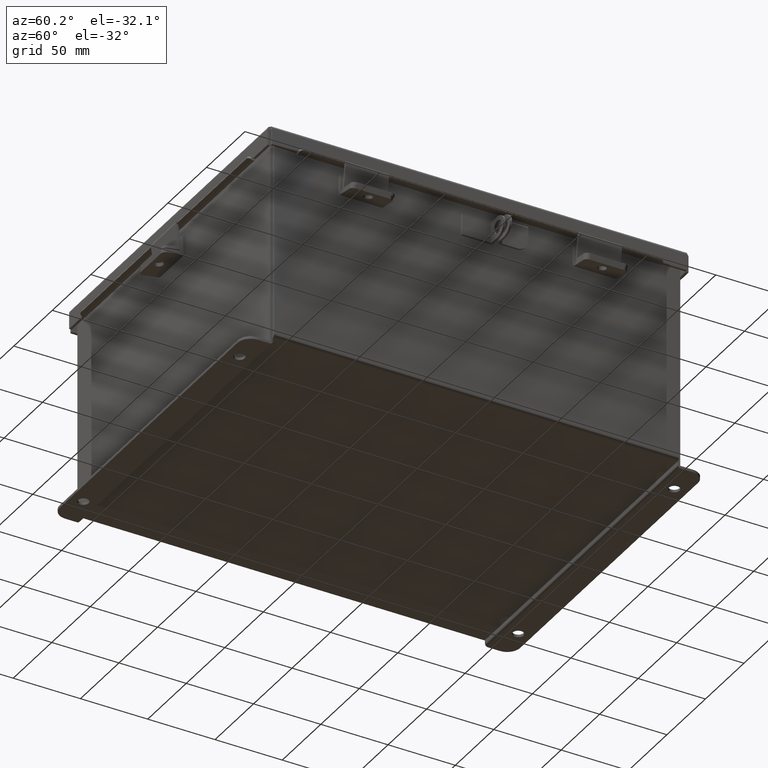
[diagram: clean part render]
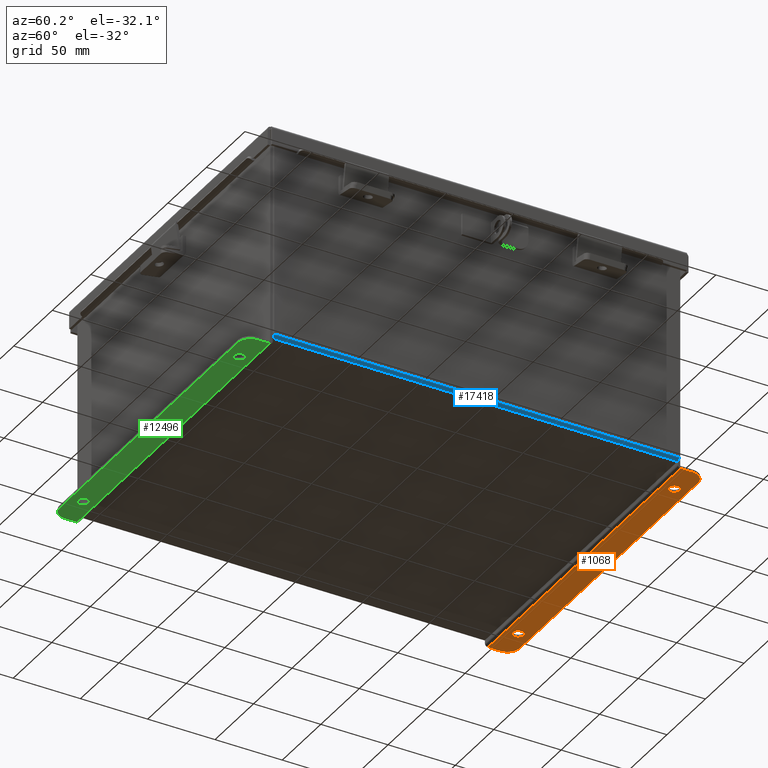
[diagram: same view with three faces highlighted in distinct colors, each labeled with its STEP entity id]
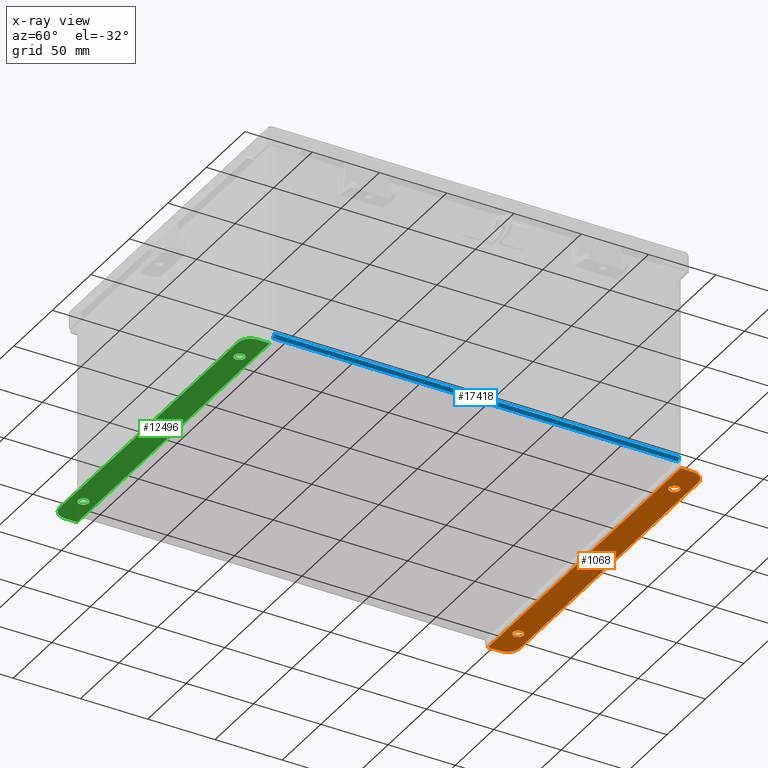
[diagram: x-ray of the same camera — body ghosted, the three highlighted faces saturated]
A machine part, auxiliary view with three faces highlighted in distinct colors.
The next image is the same camera in x-ray (body ghosted, the three faces saturated) — at least one of them is partly hidden behind the body in this view.
Their STEP definitions:

[orange] entity #1068 — the highlighted planar face has unit normal (0, 0, 1).
#88 = VERTEX_POINT ( 'NONE', #7782 ) ;
#185 = CARTESIAN_POINT ( 'NONE',  ( 4.925300000000000000, 0.01300000000000010700, -3.187000000000000300 ) ) ;
#227 = DIRECTION ( 'NONE',  ( 0.0000000000000000000, -1.000000000000000000, 3.702694488566362300E-015 ) ) ;
#447 = CARTESIAN_POINT ( 'NONE',  ( 4.925300000000000000, 0.01300000000000010700, -3.187000000000000300 ) ) ;
#666 = CIRCLE ( 'NONE', #8083, 0.1560000000000001900 ) ;
#728 = DIRECTION ( 'NONE',  ( 0.0000000000000000000, 1.000000000000000000, -3.502369222646487000E-015 ) ) ;
#854 = ORIENTED_EDGE ( 'NONE', *, *, #5842, .F. ) ;
#964 = CARTESIAN_POINT ( 'NONE',  ( -4.925300000000000000, 0.3627999999999997300, -3.187000000000001200 ) ) ;
#1068 = ADVANCED_FACE ( 'NONE', ( #13887, #10058, #17095 ), #8364, .F. ) ;
#1257 = VERTEX_POINT ( 'NONE', #11543 ) ;
#1904 = VECTOR ( 'NONE', #6563, 39.37007874015748100 ) ;
#2136 = DIRECTION ( 'NONE',  ( -0.0000000000000000000, -3.702694488566362300E-015, -1.000000000000000000 ) ) ;
#2319 = CARTESIAN_POINT ( 'NONE',  ( 3.987800000000000000, 0.3627999999999986800, -3.187000000000001200 ) ) ;
#2670 = CIRCLE ( 'NONE', #12244, 0.3750000000000000600 ) ;
#3083 = AXIS2_PLACEMENT_3D ( 'NONE', #17119, #8914, #728 ) ;
#3209 = DIRECTION ( 'NONE',  ( 0.0000000000000000000, -3.702694488566362300E-015, -1.000000000000000000 ) ) ;
#3389 = CARTESIAN_POINT ( 'NONE',  ( 4.925300000000000000, -1.092739197465705300E-014, -3.187000000000000300 ) ) ;
#3715 = DIRECTION ( 'NONE',  ( 0.0000000000000000000, 1.000000000000000000, -3.502369222646487000E-015 ) ) ;
#3739 = CIRCLE ( 'NONE', #9206, 0.1560000000000001900 ) ;
#3983 = EDGE_LOOP ( 'NONE', ( #854, #4260 ) ) ;
#4019 = EDGE_LOOP ( 'NONE', ( #4447, #6171 ) ) ;
#4260 = ORIENTED_EDGE ( 'NONE', *, *, #10173, .F. ) ;
#4287 = CIRCLE ( 'NONE', #3083, 0.1560000000000001900 ) ;
#4447 = ORIENTED_EDGE ( 'NONE', *, *, #11880, .F. ) ;
#4747 = CIRCLE ( 'NONE', #12875, 0.3750000000000000600 ) ;
#4955 = CARTESIAN_POINT ( 'NONE',  ( 0.0000000000000000000, 0.7378000000000000100, -3.187000000000002900 ) ) ;
#4979 = VECTOR ( 'NONE', #11107, 39.37007874015748100 ) ;
#4986 = DIRECTION ( 'NONE',  ( 0.0000000000000000000, -3.702694488566362300E-015, -1.000000000000000000 ) ) ;
#5842 = EDGE_CURVE ( 'NONE', #88, #1257, #10857, .T. ) ;
#5856 = DIRECTION ( 'NONE',  ( -0.0000000000000000000, -3.702694488566362300E-015, -1.000000000000000000 ) ) ;
#6171 = ORIENTED_EDGE ( 'NONE', *, *, #15103, .F. ) ;
#6379 = EDGE_CURVE ( 'NONE', #6527, #12956, #11242, .T. ) ;
#6477 = EDGE_CURVE ( 'NONE', #17090, #9082, #13621, .T. ) ;
#6527 = VERTEX_POINT ( 'NONE', #15908 ) ;
#6563 = DIRECTION ( 'NONE',  ( 0.0000000000000000000, 1.000000000000000000, -3.702694488566362300E-015 ) ) ;
#6793 = VERTEX_POINT ( 'NONE', #12423 ) ;
#7218 = VECTOR ( 'NONE', #12859, 39.37007874015748100 ) ;
#7782 = CARTESIAN_POINT ( 'NONE',  ( 3.987800000000000000, 0.5187999999999988200, -3.187000000000001600 ) ) ;
#8083 = AXIS2_PLACEMENT_3D ( 'NONE', #13114, #4986, #14526 ) ;
#8364 = PLANE ( 'NONE',  #10150 ) ;
#8410 = DIRECTION ( 'NONE',  ( 0.0000000000000000000, 3.702694488566362300E-015, 1.000000000000000000 ) ) ;
#8914 = DIRECTION ( 'NONE',  ( 0.0000000000000000000, -3.702694488566362300E-015, -1.000000000000000000 ) ) ;
#9010 = LINE ( 'NONE', #185, #4979 ) ;
#9082 = VERTEX_POINT ( 'NONE', #10435 ) ;
#9132 = VECTOR ( 'NONE', #13081, 39.37007874015748100 ) ;
#9206 = AXIS2_PLACEMENT_3D ( 'NONE', #11342, #3209, #12726 ) ;
#9300 = CARTESIAN_POINT ( 'NONE',  ( -4.925300000000000000, -1.092739197465705300E-014, -3.187000000000000300 ) ) ;
#10058 = FACE_BOUND ( 'NONE', #3983, .T. ) ;
#10150 = AXIS2_PLACEMENT_3D ( 'NONE', #15217, #8410, #227 ) ;
#10173 = EDGE_CURVE ( 'NONE', #1257, #88, #3739, .T. ) ;
#10295 = CARTESIAN_POINT ( 'NONE',  ( 4.550300000000000000, 0.3627999999999997300, -3.187000000000001200 ) ) ;
#10435 = CARTESIAN_POINT ( 'NONE',  ( 4.550300000000000000, 0.7378000000000000100, -3.187000000000002900 ) ) ;
#10778 = ORIENTED_EDGE ( 'NONE', *, *, #6379, .T. ) ;
#10857 = CIRCLE ( 'NONE', #14654, 0.1560000000000001900 ) ;
#11028 = VERTEX_POINT ( 'NONE', #14006 ) ;
#11107 = DIRECTION ( 'NONE',  ( 1.000000000000000000, -0.0000000000000000000, -0.0000000000000000000 ) ) ;
#11242 = LINE ( 'NONE', #3389, #7218 ) ;
#11342 = CARTESIAN_POINT ( 'NONE',  ( 3.987800000000000000, 0.3627999999999986800, -3.187000000000001200 ) ) ;
#11543 = CARTESIAN_POINT ( 'NONE',  ( 3.987800000000000000, 0.2067999999999984900, -3.187000000000000700 ) ) ;
#11548 = EDGE_CURVE ( 'NONE', #13458, #12956, #9010, .T. ) ;
#11664 = DIRECTION ( 'NONE',  ( 0.0000000000000000000, -1.000000000000000000, 4.370956789862820400E-015 ) ) ;
#11759 = CARTESIAN_POINT ( 'NONE',  ( -4.550300000000000000, 0.7378000000000000100, -3.187000000000002900 ) ) ;
#11831 = ORIENTED_EDGE ( 'NONE', *, *, #12418, .T. ) ;
#11840 = DIRECTION ( 'NONE',  ( 0.0000000000000000000, -3.702694488566362300E-015, -1.000000000000000000 ) ) ;
#11880 = EDGE_CURVE ( 'NONE', #11028, #6793, #666, .T. ) ;
#12091 = EDGE_LOOP ( 'NONE', ( #13238, #11831, #10778, #17648, #16179, #14104 ) ) ;
#12244 = AXIS2_PLACEMENT_3D ( 'NONE', #14033, #5856, #15413 ) ;
#12418 = EDGE_CURVE ( 'NONE', #9082, #6527, #4747, .T. ) ;
#12423 = CARTESIAN_POINT ( 'NONE',  ( -3.987800000000000900, 0.2067999999999984900, -3.187000000000000700 ) ) ;
#12726 = DIRECTION ( 'NONE',  ( 0.0000000000000000000, 1.000000000000000000, -3.502369222646487000E-015 ) ) ;
#12859 = DIRECTION ( 'NONE',  ( 0.0000000000000000000, -1.000000000000000000, 3.702694488566362300E-015 ) ) ;
#12875 = AXIS2_PLACEMENT_3D ( 'NONE', #10295, #2136, #11664 ) ;
#12956 = VERTEX_POINT ( 'NONE', #447 ) ;
#13081 = DIRECTION ( 'NONE',  ( 1.000000000000000000, 0.0000000000000000000, -0.0000000000000000000 ) ) ;
#13114 = CARTESIAN_POINT ( 'NONE',  ( -3.987800000000000900, 0.3627999999999986800, -3.187000000000001200 ) ) ;
#13238 = ORIENTED_EDGE ( 'NONE', *, *, #6477, .T. ) ;
#13458 = VERTEX_POINT ( 'NONE', #17588 ) ;
#13621 = LINE ( 'NONE', #4955, #9132 ) ;
#13887 = FACE_BOUND ( 'NONE', #4019, .T. ) ;
#14006 = CARTESIAN_POINT ( 'NONE',  ( -3.987800000000000900, 0.5187999999999988200, -3.187000000000001600 ) ) ;
#14033 = CARTESIAN_POINT ( 'NONE',  ( -4.550300000000000000, 0.3627999999999997300, -3.187000000000001200 ) ) ;
#14094 = EDGE_CURVE ( 'NONE', #13458, #16563, #16439, .T. ) ;
#14104 = ORIENTED_EDGE ( 'NONE', *, *, #17532, .T. ) ;
#14526 = DIRECTION ( 'NONE',  ( 0.0000000000000000000, 1.000000000000000000, -3.502369222646487000E-015 ) ) ;
#14654 = AXIS2_PLACEMENT_3D ( 'NONE', #2319, #11840, #3715 ) ;
#15103 = EDGE_CURVE ( 'NONE', #6793, #11028, #4287, .T. ) ;
#15217 = CARTESIAN_POINT ( 'NONE',  ( 0.0000000000000000000, -1.092739197465705300E-014, -3.187000000000000300 ) ) ;
#15413 = DIRECTION ( 'NONE',  ( 0.0000000000000000000, -1.000000000000000000, 4.370956789862820400E-015 ) ) ;
#15908 = CARTESIAN_POINT ( 'NONE',  ( 4.925300000000000000, 0.3627999999999997300, -3.187000000000001200 ) ) ;
#16179 = ORIENTED_EDGE ( 'NONE', *, *, #14094, .T. ) ;
#16439 = LINE ( 'NONE', #9300, #1904 ) ;
#16563 = VERTEX_POINT ( 'NONE', #964 ) ;
#17090 = VERTEX_POINT ( 'NONE', #11759 ) ;
#17095 = FACE_OUTER_BOUND ( 'NONE', #12091, .T. ) ;
#17119 = CARTESIAN_POINT ( 'NONE',  ( -3.987800000000000900, 0.3627999999999986800, -3.187000000000001200 ) ) ;
#17532 = EDGE_CURVE ( 'NONE', #16563, #17090, #2670, .T. ) ;
#17588 = CARTESIAN_POINT ( 'NONE',  ( -4.925299999999999100, 0.01300000000000010700, -3.187000000000000300 ) ) ;
#17648 = ORIENTED_EDGE ( 'NONE', *, *, #11548, .F. ) ;

[blue] entity #17418 — the highlighted cylindrical surface (edge-blend (fillet) strip) has radius 2.2276 mm, axis along (0, 1, 0).
#869 = DIRECTION ( 'NONE',  ( -0.0000000000000000000, -1.000000000000000000, -0.0000000000000000000 ) ) ;
#994 = CIRCLE ( 'NONE', #12838, 0.08770000000000009700 ) ;
#1087 = ORIENTED_EDGE ( 'NONE', *, *, #12641, .T. ) ;
#1200 = CIRCLE ( 'NONE', #7209, 0.08770000000000009700 ) ;
#1288 = LINE ( 'NONE', #3957, #12601 ) ;
#2115 = CARTESIAN_POINT ( 'NONE',  ( 5.000000000000000000, -5.925300000000000000, 0.01299999999999984300 ) ) ;
#2718 = ORIENTED_EDGE ( 'NONE', *, *, #8134, .F. ) ;
#2867 = CARTESIAN_POINT ( 'NONE',  ( 4.912300000000000100, 5.925300000000000000, 0.01300000000000015000 ) ) ;
#3424 = LINE ( 'NONE', #13086, #13881 ) ;
#3669 = DIRECTION ( 'NONE',  ( 0.0000000000000000000, 1.000000000000000000, 0.0000000000000000000 ) ) ;
#3957 = CARTESIAN_POINT ( 'NONE',  ( 5.000000000000000000, -5.925300000000000000, 0.01299999999999984300 ) ) ;
#6418 = VERTEX_POINT ( 'NONE', #2115 ) ;
#6984 = DIRECTION ( 'NONE',  ( 0.0000000000000000000, 1.000000000000000000, 0.0000000000000000000 ) ) ;
#7209 = AXIS2_PLACEMENT_3D ( 'NONE', #15497, #7320, #16884 ) ;
#7320 = DIRECTION ( 'NONE',  ( -0.0000000000000000000, -1.000000000000000000, -0.0000000000000000000 ) ) ;
#7690 = AXIS2_PLACEMENT_3D ( 'NONE', #2867, #6984, #12354 ) ;
#8004 = CARTESIAN_POINT ( 'NONE',  ( 5.000000000000000000, 5.925299999999998200, 0.01299999999999984300 ) ) ;
#8134 = EDGE_CURVE ( 'NONE', #12057, #11712, #994, .T. ) ;
#10854 = ORIENTED_EDGE ( 'NONE', *, *, #14666, .F. ) ;
#11381 = CARTESIAN_POINT ( 'NONE',  ( 4.912300000000000100, 5.925299999999997300, -0.07469999999999994700 ) ) ;
#11712 = VERTEX_POINT ( 'NONE', #11381 ) ;
#11788 = CARTESIAN_POINT ( 'NONE',  ( 4.912300000000000100, 5.925299999999997300, 0.01300000000000015000 ) ) ;
#12057 = VERTEX_POINT ( 'NONE', #8004 ) ;
#12354 = DIRECTION ( 'NONE',  ( 1.000000000000000000, 0.0000000000000000000, -3.553037762569317100E-015 ) ) ;
#12601 = VECTOR ( 'NONE', #14856, 39.37007874015748100 ) ;
#12641 = EDGE_CURVE ( 'NONE', #12057, #6418, #1288, .T. ) ;
#12838 = AXIS2_PLACEMENT_3D ( 'NONE', #11788, #3669, #13172 ) ;
#13086 = CARTESIAN_POINT ( 'NONE',  ( 4.912300000000000100, 5.925300000000000000, -0.07469999999999994700 ) ) ;
#13147 = ORIENTED_EDGE ( 'NONE', *, *, #16334, .F. ) ;
#13172 = DIRECTION ( 'NONE',  ( 0.0000000000000000000, 0.0000000000000000000, 1.000000000000000000 ) ) ;
#13534 = VERTEX_POINT ( 'NONE', #16377 ) ;
#13881 = VECTOR ( 'NONE', #869, 39.37007874015748100 ) ;
#14421 = FACE_OUTER_BOUND ( 'NONE', #17392, .T. ) ;
#14666 = EDGE_CURVE ( 'NONE', #11712, #13534, #3424, .T. ) ;
#14856 = DIRECTION ( 'NONE',  ( -0.0000000000000000000, -1.000000000000000000, -0.0000000000000000000 ) ) ;
#15497 = CARTESIAN_POINT ( 'NONE',  ( 4.912300000000000100, -5.925300000000000000, 0.01300000000000015000 ) ) ;
#16334 = EDGE_CURVE ( 'NONE', #13534, #6418, #1200, .T. ) ;
#16377 = CARTESIAN_POINT ( 'NONE',  ( 4.912300000000000100, -5.925300000000000000, -0.07470000000000000300 ) ) ;
#16884 = DIRECTION ( 'NONE',  ( 0.0000000000000000000, 0.0000000000000000000, 1.000000000000000000 ) ) ;
#17392 = EDGE_LOOP ( 'NONE', ( #10854, #2718, #1087, #13147 ) ) ;
#17418 = ADVANCED_FACE ( 'NONE', ( #14421 ), #17633, .T. ) ;
#17633 = CYLINDRICAL_SURFACE ( 'NONE', #7690, 0.08770000000000026400 ) ;

[green] entity #12496 — the highlighted planar face has unit normal (0, -0, 1).
#161 = VERTEX_POINT ( 'NONE', #10708 ) ;
#167 = DIRECTION ( 'NONE',  ( 0.0000000000000000000, -3.362274453740631800E-015, -1.000000000000000000 ) ) ;
#184 = EDGE_CURVE ( 'NONE', #2300, #9589, #11752, .T. ) ;
#337 = ORIENTED_EDGE ( 'NONE', *, *, #10191, .T. ) ;
#366 = VECTOR ( 'NONE', #4222, 39.37007874015748100 ) ;
#597 = DIRECTION ( 'NONE',  ( -0.0000000000000000000, -3.702694488566362300E-015, -1.000000000000000000 ) ) ;
#929 = DIRECTION ( 'NONE',  ( 0.0000000000000000000, 3.702694488566362300E-015, 1.000000000000000000 ) ) ;
#1001 = DIRECTION ( 'NONE',  ( -0.0000000000000000000, -3.702694488566362300E-015, -1.000000000000000000 ) ) ;
#1789 = EDGE_CURVE ( 'NONE', #13074, #17063, #3433, .T. ) ;
#1984 = CARTESIAN_POINT ( 'NONE',  ( -3.987800000000000000, 0.5187999999999999300, -3.187000000000005600 ) ) ;
#2066 = CARTESIAN_POINT ( 'NONE',  ( -4.925300000000008900, -1.202013117212275700E-014, -3.186999999999999800 ) ) ;
#2300 = VERTEX_POINT ( 'NONE', #1984 ) ;
#2600 = DIRECTION ( 'NONE',  ( 0.0000000000000000000, -3.362274453740631800E-015, -1.000000000000000000 ) ) ;
#2716 = EDGE_CURVE ( 'NONE', #9589, #2300, #8301, .T. ) ;
#2825 = CARTESIAN_POINT ( 'NONE',  ( 4.925299999999990200, 0.01300000000000120000, -3.186999999999999800 ) ) ;
#3028 = EDGE_CURVE ( 'NONE', #9000, #15344, #4475, .T. ) ;
#3415 = AXIS2_PLACEMENT_3D ( 'NONE', #17313, #929, #10481 ) ;
#3433 = CIRCLE ( 'NONE', #10059, 0.1560000000000001900 ) ;
#3822 = DIRECTION ( 'NONE',  ( 0.0000000000000000000, -3.362274453740631800E-015, -1.000000000000000000 ) ) ;
#4094 = ORIENTED_EDGE ( 'NONE', *, *, #1789, .F. ) ;
#4212 = CIRCLE ( 'NONE', #5996, 0.3750000000000000600 ) ;
#4222 = DIRECTION ( 'NONE',  ( 1.000000000000000000, 4.910036603141682400E-031, -0.0000000000000000000 ) ) ;
#4436 = EDGE_CURVE ( 'NONE', #7909, #161, #6863, .T. ) ;
#4475 = LINE ( 'NONE', #2825, #366 ) ;
#5207 = ORIENTED_EDGE ( 'NONE', *, *, #7993, .T. ) ;
#5350 = DIRECTION ( 'NONE',  ( 1.000000000000000000, 4.910036603141682400E-031, 0.0000000000000000000 ) ) ;
#5645 = DIRECTION ( 'NONE',  ( 0.0000000000000000000, -3.362274453740631800E-015, -1.000000000000000000 ) ) ;
#5664 = ORIENTED_EDGE ( 'NONE', *, *, #14878, .F. ) ;
#5938 = DIRECTION ( 'NONE',  ( -4.919856193148104900E-031, -1.000000000000000000, 3.702694488566362300E-015 ) ) ;
#5996 = AXIS2_PLACEMENT_3D ( 'NONE', #9197, #1001, #10549 ) ;
#6161 = CARTESIAN_POINT ( 'NONE',  ( -4.925300000000008900, 0.01300000000000010700, -3.186999999999999800 ) ) ;
#6440 = VECTOR ( 'NONE', #5350, 39.37007874015748100 ) ;
#6672 = VERTEX_POINT ( 'NONE', #14900 ) ;
#6863 = LINE ( 'NONE', #12110, #6440 ) ;
#7059 = FACE_OUTER_BOUND ( 'NONE', #17662, .T. ) ;
#7365 = LINE ( 'NONE', #2066, #10548 ) ;
#7388 = CARTESIAN_POINT ( 'NONE',  ( -3.987800000000000000, 0.2067999999999996000, -3.187000000000004700 ) ) ;
#7530 = CARTESIAN_POINT ( 'NONE',  ( -4.925300000000000000, 0.3627999999999997300, -3.187000000000005200 ) ) ;
#7752 = PLANE ( 'NONE',  #3415 ) ;
#7909 = VERTEX_POINT ( 'NONE', #8543 ) ;
#7993 = EDGE_CURVE ( 'NONE', #17696, #7909, #9553, .T. ) ;
#8022 = CARTESIAN_POINT ( 'NONE',  ( 4.925299999999990200, 0.01300000000000010700, -3.186999999999999800 ) ) ;
#8301 = CIRCLE ( 'NONE', #16365, 0.1560000000000001900 ) ;
#8373 = CARTESIAN_POINT ( 'NONE',  ( -3.987800000000000000, 0.3627999999999997300, -3.187000000000005200 ) ) ;
#8435 = AXIS2_PLACEMENT_3D ( 'NONE', #10755, #2600, #12126 ) ;
#8543 = CARTESIAN_POINT ( 'NONE',  ( -4.550300000000000000, 0.7377999999999989000, -3.187000000000002500 ) ) ;
#8779 = CARTESIAN_POINT ( 'NONE',  ( -4.550300000000000000, 0.3627999999999997300, -3.187000000000000700 ) ) ;
#8861 = DIRECTION ( 'NONE',  ( 4.919856193148104900E-031, 1.000000000000000000, -3.702694488566362300E-015 ) ) ;
#9000 = VERTEX_POINT ( 'NONE', #6161 ) ;
#9137 = EDGE_CURVE ( 'NONE', #161, #6672, #4212, .T. ) ;
#9197 = CARTESIAN_POINT ( 'NONE',  ( 4.550299999999999100, 0.3628000000000008400, -3.187000000000000700 ) ) ;
#9553 = CIRCLE ( 'NONE', #13157, 0.3750000000000000600 ) ;
#9589 = VERTEX_POINT ( 'NONE', #7388 ) ;
#9660 = EDGE_CURVE ( 'NONE', #9000, #17696, #7365, .T. ) ;
#9726 = DIRECTION ( 'NONE',  ( 0.0000000000000000000, 1.000000000000000000, -3.502369222646487000E-015 ) ) ;
#9763 = ORIENTED_EDGE ( 'NONE', *, *, #9660, .T. ) ;
#10059 = AXIS2_PLACEMENT_3D ( 'NONE', #11958, #3822, #13327 ) ;
#10136 = DIRECTION ( 'NONE',  ( 0.0000000000000000000, -1.000000000000000000, 4.370956789862820400E-015 ) ) ;
#10191 = EDGE_CURVE ( 'NONE', #6672, #15344, #14191, .T. ) ;
#10481 = DIRECTION ( 'NONE',  ( -4.919856193148104900E-031, -1.000000000000000000, 3.702694488566362300E-015 ) ) ;
#10534 = VECTOR ( 'NONE', #5938, 39.37007874015748100 ) ;
#10548 = VECTOR ( 'NONE', #8861, 39.37007874015748100 ) ;
#10549 = DIRECTION ( 'NONE',  ( 0.0000000000000000000, -1.000000000000000000, 4.370956789862820400E-015 ) ) ;
#10708 = CARTESIAN_POINT ( 'NONE',  ( 4.550299999999999100, 0.7378000000000000100, -3.187000000000002500 ) ) ;
#10755 = CARTESIAN_POINT ( 'NONE',  ( -3.987800000000000000, 0.3627999999999997300, -3.187000000000005200 ) ) ;
#10866 = CIRCLE ( 'NONE', #16572, 0.1560000000000001900 ) ;
#10879 = EDGE_LOOP ( 'NONE', ( #17656, #16148 ) ) ;
#11279 = CARTESIAN_POINT ( 'NONE',  ( 4.925299999999990200, -1.092739197465705300E-014, -3.186999999999999800 ) ) ;
#11579 = CARTESIAN_POINT ( 'NONE',  ( 3.987799999999999100, 0.5187999999999999300, -3.187000000000001200 ) ) ;
#11698 = CARTESIAN_POINT ( 'NONE',  ( 3.987799999999999100, 0.2067999999999996000, -3.187000000000000300 ) ) ;
#11752 = CIRCLE ( 'NONE', #8435, 0.1560000000000001900 ) ;
#11958 = CARTESIAN_POINT ( 'NONE',  ( 3.987799999999999100, 0.3627999999999997300, -3.187000000000000700 ) ) ;
#12110 = CARTESIAN_POINT ( 'NONE',  ( -2.035385365534024800E-024, 0.7378000000000000100, -3.187000000000002500 ) ) ;
#12126 = DIRECTION ( 'NONE',  ( 0.0000000000000000000, 1.000000000000000000, -3.502369222646487000E-015 ) ) ;
#12496 = ADVANCED_FACE ( 'NONE', ( #17550, #17109, #7059 ), #7752, .F. ) ;
#13074 = VERTEX_POINT ( 'NONE', #11579 ) ;
#13157 = AXIS2_PLACEMENT_3D ( 'NONE', #8779, #597, #10136 ) ;
#13171 = ORIENTED_EDGE ( 'NONE', *, *, #9137, .T. ) ;
#13327 = DIRECTION ( 'NONE',  ( 0.0000000000000000000, 1.000000000000000000, -3.502369222646487000E-015 ) ) ;
#13817 = CARTESIAN_POINT ( 'NONE',  ( 3.987799999999999100, 0.3627999999999997300, -3.187000000000000700 ) ) ;
#14191 = LINE ( 'NONE', #11279, #10534 ) ;
#14878 = EDGE_CURVE ( 'NONE', #17063, #13074, #10866, .T. ) ;
#14900 = CARTESIAN_POINT ( 'NONE',  ( 4.925299999999999100, 0.3628000000000008400, -3.187000000000005200 ) ) ;
#15205 = DIRECTION ( 'NONE',  ( 0.0000000000000000000, 1.000000000000000000, -3.502369222646487000E-015 ) ) ;
#15272 = EDGE_LOOP ( 'NONE', ( #4094, #5664 ) ) ;
#15344 = VERTEX_POINT ( 'NONE', #8022 ) ;
#16148 = ORIENTED_EDGE ( 'NONE', *, *, #2716, .F. ) ;
#16365 = AXIS2_PLACEMENT_3D ( 'NONE', #8373, #167, #9726 ) ;
#16572 = AXIS2_PLACEMENT_3D ( 'NONE', #13817, #5645, #15205 ) ;
#16626 = ORIENTED_EDGE ( 'NONE', *, *, #3028, .F. ) ;
#16849 = ORIENTED_EDGE ( 'NONE', *, *, #4436, .T. ) ;
#17063 = VERTEX_POINT ( 'NONE', #11698 ) ;
#17109 = FACE_BOUND ( 'NONE', #15272, .T. ) ;
#17313 = CARTESIAN_POINT ( 'NONE',  ( 0.0000000000000000000, -1.092739197465705300E-014, -3.186999999999999800 ) ) ;
#17550 = FACE_BOUND ( 'NONE', #10879, .T. ) ;
#17656 = ORIENTED_EDGE ( 'NONE', *, *, #184, .F. ) ;
#17662 = EDGE_LOOP ( 'NONE', ( #9763, #5207, #16849, #13171, #337, #16626 ) ) ;
#17696 = VERTEX_POINT ( 'NONE', #7530 ) ;